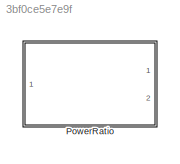
MODEL slx_3bf0ce5e7e9f
KIND library
CONFIG AbsTol = auto
CONFIG EnableMultiTasking = off
CONFIG FixedStep = auto
CONFIG MaxStep = auto
CONFIG MinStep = auto
CONFIG RelTol = 1e-3
CONFIG SampleTimeConstraint = Unconstrained
CONFIG Solver = VariableStepAuto
CONFIG SolverName = VariableStepAuto
CONFIG StartTime = 0.0
CONFIG StopTime = 10.0
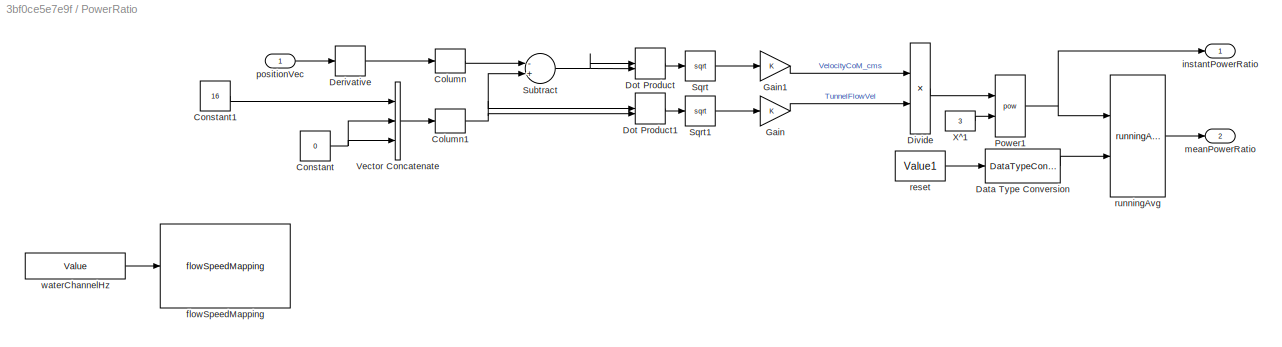
BLOCK [SubSystem] PowerRatio
  Ports = [1, 2]
  RequestExecContextInheritance = off
BLOCK [Reshape] PowerRatio/Column
  OutputDimensionality = Column vector (2-D)
  Ports = [1, 1]
BLOCK [Reshape] PowerRatio/Column1
  OutputDimensionality = Column vector (2-D)
  Ports = [1, 1]
BLOCK [Constant] PowerRatio/Constant
  Value = 0
BLOCK [Constant] PowerRatio/Constant1
  Value = 16
BLOCK [DataTypeConversion] PowerRatio/Data Type Conversion
  OutDataTypeStr = boolean
  RndMeth = Floor
  SaturateOnIntegerOverflow = off
BLOCK [Derivative] PowerRatio/Derivative
BLOCK [Product] PowerRatio/Divide
  InputSameDT = off
  Inputs = */
  OutDataTypeStr = Inherit: Inherit via internal rule
  Ports = [2, 1]
  RndMeth = Floor
  SaturateOnIntegerOverflow = off
BLOCK [DotProduct] PowerRatio/Dot Product
  OutDataTypeStr = Inherit: Inherit via internal rule
BLOCK [DotProduct] PowerRatio/Dot Product1
  OutDataTypeStr = Inherit: Inherit via internal rule
BLOCK [Gain] PowerRatio/Gain
  OutDataTypeStr = Inherit: Inherit via internal rule
  ParamDataTypeStr = Inherit: Inherit via internal rule
  SaturateOnIntegerOverflow = off
BLOCK [Gain] PowerRatio/Gain1
  OutDataTypeStr = Inherit: Inherit via internal rule
  ParamDataTypeStr = Inherit: Inherit via internal rule
  SaturateOnIntegerOverflow = off
BLOCK [Math] PowerRatio/Power1
  Operator = pow
  Ports = [2, 1]
BLOCK [Sqrt] PowerRatio/Sqrt
BLOCK [Sqrt] PowerRatio/Sqrt1
BLOCK [Sum] PowerRatio/Subtract
  InputSameDT = off
  Inputs = -+
  OutDataTypeStr = Inherit: Inherit via internal rule
  Ports = [2, 1]
  SaturateOnIntegerOverflow = off
BLOCK [Concatenate] PowerRatio/Vector Concatenate
  NumInputs = 3
  Ports = [3, 1]
BLOCK [Constant] PowerRatio/X^1
  Value = 3
BLOCK [Reference] PowerRatio/flowSpeedMapping  REF=flowSpeedMapping_ul/flowSpeedMapping
  Ports = [1, 1]
  SourceBlock = flowSpeedMapping_ul/flowSpeedMapping
BLOCK [Outport] PowerRatio/instantPowerRatio
  IconDisplay = Port number
BLOCK [Outport] PowerRatio/meanPowerRatio
  IconDisplay = Port number
  Port = 2
BLOCK [Inport] PowerRatio/positionVec
  IconDisplay = Port number
BLOCK [Constant] PowerRatio/reset
  Value = Value1
BLOCK [Reference] PowerRatio/runningAvg  REF=runningAvg_ul/runningAvg
  Ports = [2, 1]
  SourceBlock = runningAvg_ul/runningAvg
  SourceType = SubSystem
BLOCK [Constant] PowerRatio/waterChannelHz
  Value = Value
NET PowerRatio/Column1:1 -> PowerRatio/Dot Product1:1, PowerRatio/Dot Product1:2, PowerRatio/Subtract:2
LINE PowerRatio/Column:1 -> PowerRatio/Subtract:1
LINE PowerRatio/Constant1:1 -> PowerRatio/Vector Concatenate:1
NET PowerRatio/Constant:1 -> PowerRatio/Vector Concatenate:2, PowerRatio/Vector Concatenate:3
LINE PowerRatio/Data Type Conversion:1 -> PowerRatio/runningAvg:2
LINE PowerRatio/Derivative:1 -> PowerRatio/Column:1
LINE PowerRatio/Divide:1 -> PowerRatio/Power1:1
LINE PowerRatio/Dot Product1:1 -> PowerRatio/Sqrt1:1
LINE PowerRatio/Dot Product:1 -> PowerRatio/Sqrt:1
LINE PowerRatio/Gain1:1 -> PowerRatio/Divide:1
LINE PowerRatio/Gain:1 -> PowerRatio/Divide:2
NET PowerRatio/Power1:1 -> PowerRatio/instantPowerRatio:1, PowerRatio/runningAvg:1
LINE PowerRatio/Sqrt1:1 -> PowerRatio/Gain:1
LINE PowerRatio/Sqrt:1 -> PowerRatio/Gain1:1
NET PowerRatio/Subtract:1 -> PowerRatio/Dot Product:1, PowerRatio/Dot Product:2
LINE PowerRatio/Vector Concatenate:1 -> PowerRatio/Column1:1
LINE PowerRatio/X^1:1 -> PowerRatio/Power1:2
LINE PowerRatio/positionVec:1 -> PowerRatio/Derivative:1
LINE PowerRatio/reset:1 -> PowerRatio/Data Type Conversion:1
LINE PowerRatio/runningAvg:1 -> PowerRatio/meanPowerRatio:1
LINE PowerRatio/waterChannelHz:1 -> PowerRatio/flowSpeedMapping:1
note: NET lines group one-source signal fan-out (src -> all destinations, sorted); 1:1 wires keep LINE
